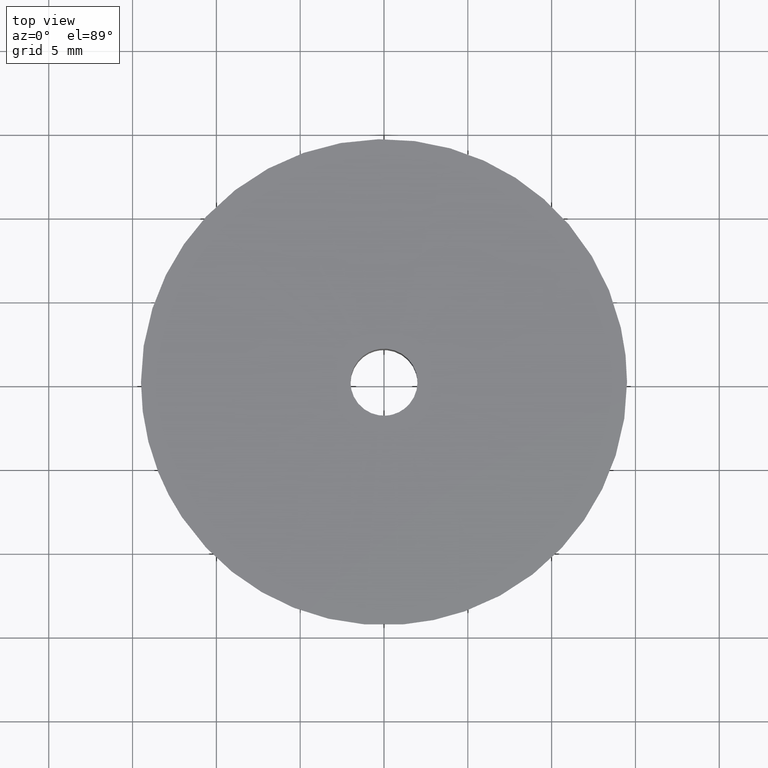
[diagram: clean part render]
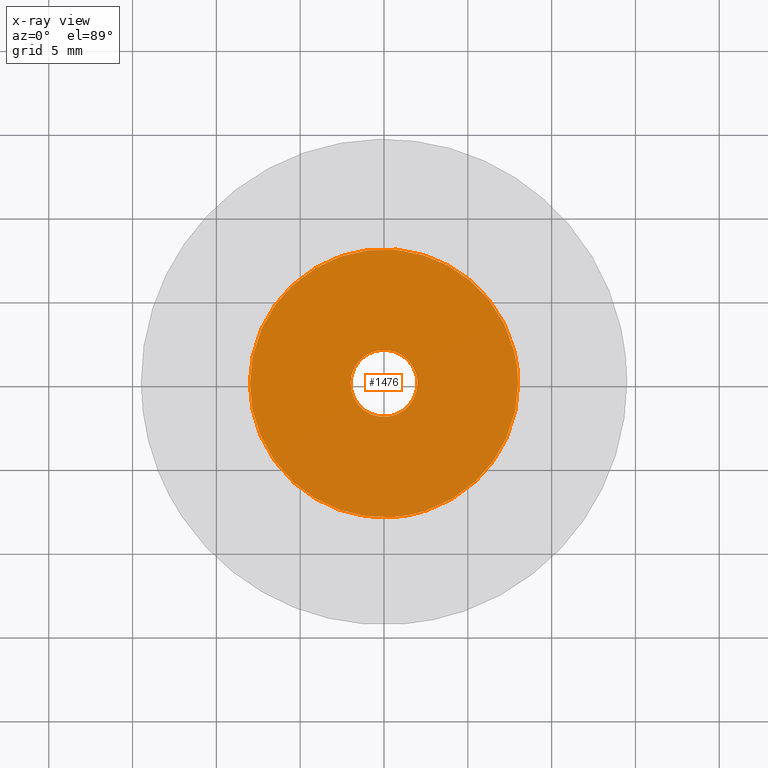
[diagram: x-ray — body ghosted, one internal face saturated and labeled with its STEP entity id]
A machine part, top view, then the same camera in x-ray: the body is ghosted and one INTERNAL B-rep face — a face not visible from any outside direction — is saturated and labeled: STEP entity #1476.
In plain terms, the highlighted face is a freeform B-spline surface patch.
Its self-contained STEP definition (entity closure, byte-faithful):
#750=CARTESIAN_POINT('',(-0.236066924168918,1.986019236389971,10.800000000000001));
#751=VERTEX_POINT('',#750);
#757=CARTESIAN_POINT('',(2.0,0.0,10.800000000000001));
#758=VERTEX_POINT('',#757);
#759=CARTESIAN_POINT('',(-0.236066924168918,1.986019236389971,10.800000000000004));
#760=CARTESIAN_POINT('',(-0.118447458564075,2.000000000000000,10.800000000000002));
#761=CARTESIAN_POINT('',(0.0,2.0,10.800000000000001));
#762=CARTESIAN_POINT('',(2.000000000000000,2.000000000000000,10.800000000000001));
#763=CARTESIAN_POINT('',(2.0,0.0,10.800000000000001));
#771=(BOUNDED_CURVE()B_SPLINE_CURVE(2,(#759,#760,#761,#762,#763),.UNSPECIFIED.,.F.,.U.)B_SPLINE_CURVE_WITH_KNOTS((3,2,3),(0.229562605002031,0.250000000000000,0.500000000000000),.UNSPECIFIED.)CURVE()GEOMETRIC_REPRESENTATION_ITEM()RATIONAL_B_SPLINE_CURVE((0.956027011906748,0.976056102379532,1.0,0.707106781186548,1.0))REPRESENTATION_ITEM(''));
#772=EDGE_CURVE('',#751,#758,#771,.T.);
#774=CARTESIAN_POINT('',(0.122097079093708,-1.996269596842266,10.800000000000001));
#775=VERTEX_POINT('',#774);
#776=CARTESIAN_POINT('',(2.0,0.0,10.800000000000001));
#777=CARTESIAN_POINT('',(2.000000000000000,-1.881412133766066,10.799999999999999));
#778=CARTESIAN_POINT('',(0.122097079093708,-1.996269596842266,10.800000000000006));
#786=(BOUNDED_CURVE()B_SPLINE_CURVE(2,(#776,#777,#778),.UNSPECIFIED.,.F.,.U.)B_SPLINE_CURVE_WITH_KNOTS((3,3),(0.500000000000000,0.739332962237819),.UNSPECIFIED.)CURVE()GEOMETRIC_REPRESENTATION_ITEM()RATIONAL_B_SPLINE_CURVE((1.0,0.719603993288027,0.976072041664310))REPRESENTATION_ITEM(''));
#787=EDGE_CURVE('',#758,#775,#786,.T.);
#861=CARTESIAN_POINT('',(-2.0,0.0,10.800000000000001));
#862=VERTEX_POINT('',#861);
#863=CARTESIAN_POINT('',(0.122097079093708,-1.996269596842266,10.799999999999999));
#864=CARTESIAN_POINT('',(0.061105526621239,-2.000000000000000,10.799999999999999));
#865=CARTESIAN_POINT('',(0.0,-2.0,10.800000000000001));
#866=CARTESIAN_POINT('',(-2.000000000000000,-2.000000000000000,10.800000000000001));
#867=CARTESIAN_POINT('',(-2.0,0.0,10.800000000000001));
#875=(BOUNDED_CURVE()B_SPLINE_CURVE(2,(#863,#864,#865,#866,#867),.UNSPECIFIED.,.F.,.U.)B_SPLINE_CURVE_WITH_KNOTS((3,2,3),(0.739332962237820,0.750000000000000,1.0),.UNSPECIFIED.)CURVE()GEOMETRIC_REPRESENTATION_ITEM()RATIONAL_B_SPLINE_CURVE((0.976072041664312,0.987502787898522,1.0,0.707106781186548,1.0))REPRESENTATION_ITEM(''));
#876=EDGE_CURVE('',#775,#862,#875,.T.);
#878=CARTESIAN_POINT('',(-2.0,0.0,10.800000000000001));
#879=CARTESIAN_POINT('',(-2.000000000000000,1.776350443651105,10.799999999999999));
#880=CARTESIAN_POINT('',(-0.236066924168918,1.986019236389971,10.800000000000004));
#888=(BOUNDED_CURVE()B_SPLINE_CURVE(2,(#878,#879,#880),.UNSPECIFIED.,.F.,.U.)B_SPLINE_CURVE_WITH_KNOTS((3,3),(0.0,0.229562605002031),.UNSPECIFIED.)CURVE()GEOMETRIC_REPRESENTATION_ITEM()RATIONAL_B_SPLINE_CURVE((1.0,0.731050678807015,0.956027011906748))REPRESENTATION_ITEM(''));
#889=EDGE_CURVE('',#862,#751,#888,.T.);
#917=CARTESIAN_POINT('',(-0.944267940509165,7.944076916576954,10.800000000000299));
#918=VERTEX_POINT('',#917);
#919=CARTESIAN_POINT('',(8.0,0.0,10.800000000000001));
#920=VERTEX_POINT('',#919);
#921=CARTESIAN_POINT('',(-0.944267940509165,7.944076916576954,10.800000000000304));
#922=CARTESIAN_POINT('',(-0.473789957461908,8.0,10.800000000000001));
#923=CARTESIAN_POINT('',(0.0,8.0,10.800000000000001));
#924=CARTESIAN_POINT('',(8.0,8.0,10.800000000000001));
#925=CARTESIAN_POINT('',(8.0,0.0,10.800000000000001));
#933=(BOUNDED_CURVE()B_SPLINE_CURVE(2,(#921,#922,#923,#924,#925),.UNSPECIFIED.,.F.,.U.)B_SPLINE_CURVE_WITH_KNOTS((3,2,3),(0.229562599814687,0.250000000000000,0.500000000000000),.UNSPECIFIED.)CURVE()GEOMETRIC_REPRESENTATION_ITEM()RATIONAL_B_SPLINE_CURVE((0.956027001739329,0.976056096302181,1.0,0.707106781186548,1.0))REPRESENTATION_ITEM(''));
#934=EDGE_CURVE('',#918,#920,#933,.T.);
#975=CARTESIAN_POINT('',(0.488380096242042,-7.985078890125430,10.799999999999610));
#976=VERTEX_POINT('',#975);
#982=CARTESIAN_POINT('',(8.0,0.0,10.800000000000001));
#983=CARTESIAN_POINT('',(8.0,-7.525656296814094,10.800000000000001));
#984=CARTESIAN_POINT('',(0.488380096242043,-7.985078890125430,10.799999999999615));
#992=(BOUNDED_CURVE()B_SPLINE_CURVE(2,(#982,#983,#984),.UNSPECIFIED.,.F.,.U.)B_SPLINE_CURVE_WITH_KNOTS((3,3),(0.500000000000000,0.739333139865917),.UNSPECIFIED.)CURVE()GEOMETRIC_REPRESENTATION_ITEM()RATIONAL_B_SPLINE_CURVE((1.0,0.719603785183766,0.976072422355431))REPRESENTATION_ITEM(''));
#993=EDGE_CURVE('',#920,#976,#992,.T.);
#1016=CARTESIAN_POINT('',(-8.0,0.0,10.800000000000001));
#1017=VERTEX_POINT('',#1016);
#1018=CARTESIAN_POINT('',(-8.0,0.0,10.800000000000001));
#1019=CARTESIAN_POINT('',(-8.0,7.105401554977757,10.800000000000001));
#1020=CARTESIAN_POINT('',(-0.944267940509165,7.944076916576954,10.800000000000303));
#1028=(BOUNDED_CURVE()B_SPLINE_CURVE(2,(#1018,#1019,#1020),.UNSPECIFIED.,.F.,.U.)B_SPLINE_CURVE_WITH_KNOTS((3,3),(0.0,0.229562599814687),.UNSPECIFIED.)CURVE()GEOMETRIC_REPRESENTATION_ITEM()RATIONAL_B_SPLINE_CURVE((1.0,0.731050684884367,0.956027001739329))REPRESENTATION_ITEM(''));
#1029=EDGE_CURVE('',#1017,#918,#1028,.T.);
#1031=CARTESIAN_POINT('',(0.488380096242043,-7.985078890125430,10.799999999999615));
#1032=CARTESIAN_POINT('',(0.244417984846538,-8.0,10.800000000000006));
#1033=CARTESIAN_POINT('',(0.0,-8.0,10.800000000000001));
#1034=CARTESIAN_POINT('',(-8.0,-8.0,10.800000000000001));
#1035=CARTESIAN_POINT('',(-8.0,0.0,10.800000000000001));
#1043=(BOUNDED_CURVE()B_SPLINE_CURVE(2,(#1031,#1032,#1033,#1034,#1035),.UNSPECIFIED.,.F.,.U.)B_SPLINE_CURVE_WITH_KNOTS((3,2,3),(0.739333139865917,0.750000000000000,1.0),.UNSPECIFIED.)CURVE()GEOMETRIC_REPRESENTATION_ITEM()RATIONAL_B_SPLINE_CURVE((0.976072422355431,0.987502996002782,1.0,0.707106781186548,1.0))REPRESENTATION_ITEM(''));
#1044=EDGE_CURVE('',#976,#1017,#1043,.T.);
#1459=CARTESIAN_POINT('',(-8.799199968988896,-8.799005706689355,10.800000000000001));
#1460=CARTESIAN_POINT('',(8.799200398142338,-8.799005706689355,10.800000000000001));
#1461=CARTESIAN_POINT('',(-8.799199968988896,8.799054487130640,10.800000000000001));
#1462=CARTESIAN_POINT('',(8.799200398142338,8.799054487130640,10.800000000000001));
#1463=B_SPLINE_SURFACE_WITH_KNOTS('',1,1,((#1459,#1461),(#1460,#1462)),.UNSPECIFIED.,.F.,.F.,.U.,(2,2),(2,2),(0.0,17.598400367131230),(0.0,17.598060193820000),.UNSPECIFIED.);
#1464=ORIENTED_EDGE('',*,*,#1029,.T.);
#1465=ORIENTED_EDGE('',*,*,#934,.T.);
#1466=ORIENTED_EDGE('',*,*,#993,.T.);
#1467=ORIENTED_EDGE('',*,*,#1044,.T.);
#1468=EDGE_LOOP('',(#1464,#1465,#1466,#1467));
#1469=FACE_OUTER_BOUND('',#1468,.T.);
#1470=ORIENTED_EDGE('',*,*,#787,.F.);
#1471=ORIENTED_EDGE('',*,*,#772,.F.);
#1472=ORIENTED_EDGE('',*,*,#889,.F.);
#1473=ORIENTED_EDGE('',*,*,#876,.F.);
#1474=EDGE_LOOP('',(#1470,#1471,#1472,#1473));
#1475=FACE_BOUND('',#1474,.T.);
#1476=ADVANCED_FACE('',(#1469,#1475),#1463,.F.);